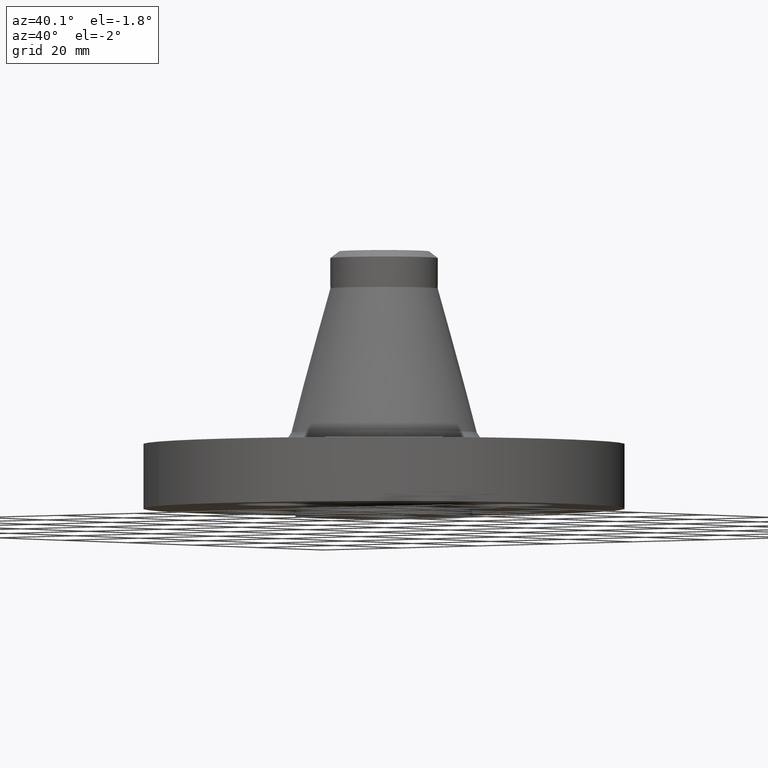
[diagram: clean part render]
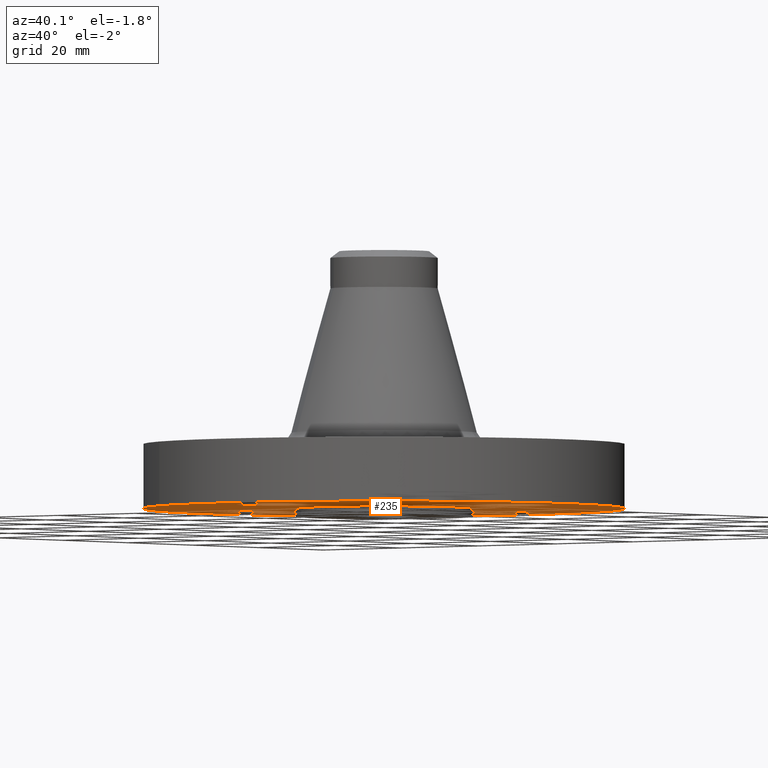
[diagram: same view with one face highlighted and labeled with its STEP entity id]
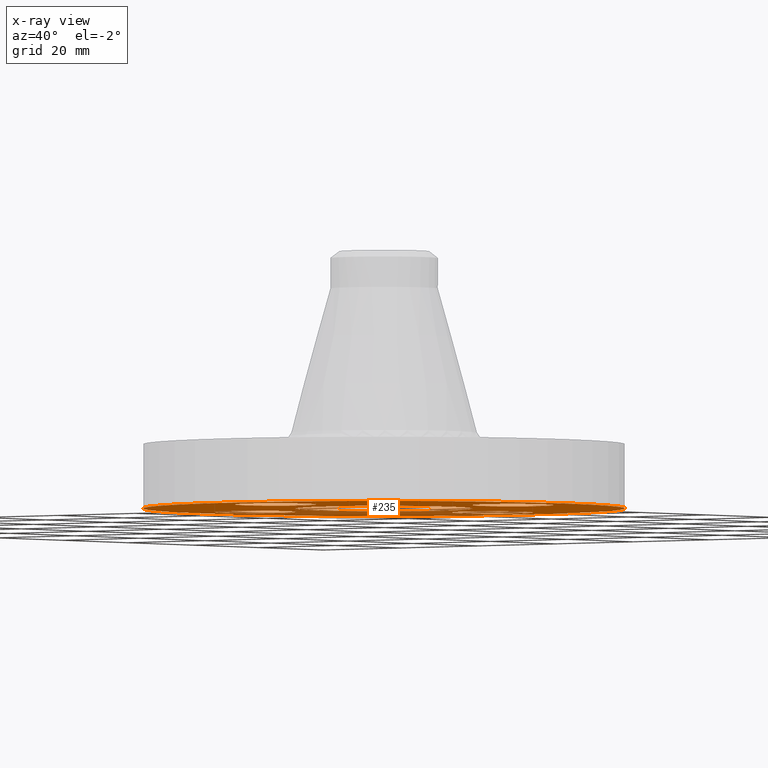
[diagram: x-ray of the same camera — body ghosted, the highlighted face saturated]
A machine part, auxiliary view. The second image highlights one B-rep face of the part: STEP entity #235.
The next image is the same camera in x-ray: the body ghosted, the highlighted face saturated — about 21% of this face is hidden behind the body in this view.
In plain terms, the highlighted planar face has unit normal (0, 0, -1).
Its self-contained STEP definition (entity closure, byte-faithful):
#114=AXIS2_PLACEMENT_3D('Circle Axis2P3D',#112,#113,$) ;
#139=AXIS2_PLACEMENT_3D('Plane Axis2P3D',#136,#137,#138) ;
#143=AXIS2_PLACEMENT_3D('Circle Axis2P3D',#141,#142,$) ;
#152=AXIS2_PLACEMENT_3D('Circle Axis2P3D',#150,#151,$) ;
#165=AXIS2_PLACEMENT_3D('Circle Axis2P3D',#163,#164,$) ;
#174=AXIS2_PLACEMENT_3D('Circle Axis2P3D',#172,#173,$) ;
#183=AXIS2_PLACEMENT_3D('Circle Axis2P3D',#181,#182,$) ;
#192=AXIS2_PLACEMENT_3D('Circle Axis2P3D',#190,#191,$) ;
#201=AXIS2_PLACEMENT_3D('Circle Axis2P3D',#199,#200,$) ;
#210=AXIS2_PLACEMENT_3D('Circle Axis2P3D',#208,#209,$) ;
#219=AXIS2_PLACEMENT_3D('Circle Axis2P3D',#217,#218,$) ;
#228=AXIS2_PLACEMENT_3D('Circle Axis2P3D',#226,#227,$) ;
#44=CARTESIAN_POINT('Vertex',(1.03356149304,0.151019044657,0.)) ;
#50=CARTESIAN_POINT('Control Point',(1.03356149301,0.151019044661,0.)) ;
#51=CARTESIAN_POINT('Control Point',(1.05728350908,0.194441903798,8.34104439061E-013)) ;
#52=CARTESIAN_POINT('Control Point',(1.08953158359,0.233206955974,1.66820887812E-012)) ;
#53=CARTESIAN_POINT('Control Point',(1.12909312141,0.265074533342,2.50231331718E-012)) ;
#54=CARTESIAN_POINT('Control Point',(1.21857978084,0.311580534084,4.17052219531E-012)) ;
#55=CARTESIAN_POINT('Control Point',(1.31900750771,0.320796932274,5.83873107343E-012)) ;
#56=CARTESIAN_POINT('Control Point',(1.36951551943,0.315356480668,6.67283551249E-012)) ;
#57=CARTESIAN_POINT('Control Point',(1.46567685163,0.28496456545,8.34104439061E-012)) ;
#58=CARTESIAN_POINT('Control Point',(1.54320695598,0.220468416416,1.00092532687E-011)) ;
#59=CARTESIAN_POINT('Control Point',(1.57507453335,0.180906878601,1.08433577078E-011)) ;
#60=CARTESIAN_POINT('Control Point',(1.62158053409,0.0914202191715,1.25115665859E-011)) ;
#61=CARTESIAN_POINT('Control Point',(1.63079693228,-0.00900750770346,1.4179775464E-011)) ;
#62=CARTESIAN_POINT('Control Point',(1.62535648068,-0.059515519424,1.50138799031E-011)) ;
#63=CARTESIAN_POINT('Control Point',(1.61016052307,-0.107596185523,1.58479843422E-011)) ;
#64=CARTESIAN_POINT('Control Point',(1.58643850701,-0.151019044661,1.66820887812E-011)) ;
#65=CARTESIAN_POINT('Vertex',(1.58643850701,-0.151019044661,1.66820887812E-011)) ;
#112=CARTESIAN_POINT('Axis2P3D Location',(1.31000000001,0.,1.66820887812E-011)) ;
#136=CARTESIAN_POINT('Axis2P3D Location',(0.,0.690000000003,0.)) ;
#141=CARTESIAN_POINT('Axis2P3D Location',(-3.08540594648E-011,-1.26443038017E-012,0.)) ;
#145=CARTESIAN_POINT('Vertex',(-0.898922884866,-1.64546730358,0.)) ;
#147=CARTESIAN_POINT('Vertex',(0.898922884888,1.64546730355,3.33327066736E-011)) ;
#150=CARTESIAN_POINT('Axis2P3D Location',(8.39223703654E-016,-1.81193992444E-011,0.)) ;
#163=CARTESIAN_POINT('Axis2P3D Location',(4.3665228913E-011,-5.30795005499E-012,0.)) ;
#167=CARTESIAN_POINT('Vertex',(0.330803621648,0.605531967718,0.)) ;
#169=CARTESIAN_POINT('Vertex',(-0.330803621639,-0.605531967707,3.33327066736E-011)) ;
#172=CARTESIAN_POINT('Axis2P3D Location',(-1.28120086718E-011,2.55455499274E-011,0.)) ;
#181=CARTESIAN_POINT('Axis2P3D Location',(-1.28118338336E-011,-1.30999999998,0.)) ;
#185=CARTESIAN_POINT('Vertex',(0.151019044675,-1.03356149299,0.)) ;
#187=CARTESIAN_POINT('Vertex',(-0.151019044675,-1.58643850699,0.)) ;
#190=CARTESIAN_POINT('Axis2P3D Location',(4.36654037512E-011,-1.31000000001,0.)) ;
#199=CARTESIAN_POINT('Axis2P3D Location',(-1.31000000001,-1.81196789856E-011,0.)) ;
#203=CARTESIAN_POINT('Vertex',(-1.03356149304,-0.151019044693,0.)) ;
#205=CARTESIAN_POINT('Vertex',(-1.58643850697,0.151019044657,0.)) ;
#208=CARTESIAN_POINT('Axis2P3D Location',(-1.30999999998,3.83574187286E-011,0.)) ;
#217=CARTESIAN_POINT('Axis2P3D Location',(4.36654037512E-011,1.31,0.)) ;
#221=CARTESIAN_POINT('Vertex',(-0.151019044675,1.03356149302,0.)) ;
#223=CARTESIAN_POINT('Vertex',(0.151019044675,1.58643850703,0.)) ;
#226=CARTESIAN_POINT('Axis2P3D Location',(-1.28118338336E-011,1.31000000003,0.)) ;
#113=DIRECTION('Axis2P3D Direction',(0.,-0.,-0.0393700787402)) ;
#137=DIRECTION('Axis2P3D Direction',(0.,0.,-0.0393700787402)) ;
#138=DIRECTION('Axis2P3D XDirection',(0.0393700787402,0.,0.)) ;
#142=DIRECTION('Axis2P3D Direction',(0.,0.,-0.0393700787402)) ;
#151=DIRECTION('Axis2P3D Direction',(0.,0.,-0.0393700787402)) ;
#164=DIRECTION('Axis2P3D Direction',(0.,0.,-0.0393700787402)) ;
#173=DIRECTION('Axis2P3D Direction',(0.,0.,-0.0393700787402)) ;
#182=DIRECTION('Axis2P3D Direction',(0.,0.,-0.0393700787402)) ;
#191=DIRECTION('Axis2P3D Direction',(0.,0.,-0.0393700787402)) ;
#200=DIRECTION('Axis2P3D Direction',(0.,0.,-0.0393700787402)) ;
#209=DIRECTION('Axis2P3D Direction',(0.,0.,-0.0393700787402)) ;
#218=DIRECTION('Axis2P3D Direction',(0.,0.,-0.0393700787402)) ;
#227=DIRECTION('Axis2P3D Direction',(0.,0.,-0.0393700787402)) ;
#156=ORIENTED_EDGE('',*,*,#149,.T.) ;
#157=ORIENTED_EDGE('',*,*,#154,.T.) ;
#160=ORIENTED_EDGE('',*,*,#116,.F.) ;
#161=ORIENTED_EDGE('',*,*,#67,.F.) ;
#178=ORIENTED_EDGE('',*,*,#171,.F.) ;
#179=ORIENTED_EDGE('',*,*,#176,.F.) ;
#196=ORIENTED_EDGE('',*,*,#189,.F.) ;
#197=ORIENTED_EDGE('',*,*,#194,.F.) ;
#214=ORIENTED_EDGE('',*,*,#207,.F.) ;
#215=ORIENTED_EDGE('',*,*,#212,.F.) ;
#232=ORIENTED_EDGE('',*,*,#225,.F.) ;
#233=ORIENTED_EDGE('',*,*,#230,.F.) ;
#162=FACE_BOUND('',#159,.T.) ;
#180=FACE_BOUND('',#177,.T.) ;
#198=FACE_BOUND('',#195,.T.) ;
#216=FACE_BOUND('',#213,.T.) ;
#234=FACE_BOUND('',#231,.T.) ;
#235=ADVANCED_FACE('PartBody',(#158,#162,#180,#198,#216,#234),#140,.T.) ;
#49=B_SPLINE_CURVE_WITH_KNOTS('',5,(#50,#51,#52,#53,#54,#55,#56,#57,#58,#59,#60,#61,#62,#63,#64),.UNSPECIFIED.,.F.,.U.,(6,3,3,3,6),(-12.5679414107,-6.28397070536,8.881784197E-016,6.28397070536,12.5679414107),.UNSPECIFIED.) ;
#115=CIRCLE('generated circle',#114,0.315000000001) ;
#144=CIRCLE('generated circle',#143,1.87500000001) ;
#153=CIRCLE('generated circle',#152,1.87500000001) ;
#166=CIRCLE('generated circle',#165,0.690000000001) ;
#175=CIRCLE('generated circle',#174,0.690000000001) ;
#184=CIRCLE('generated circle',#183,0.315000000013) ;
#193=CIRCLE('generated circle',#192,0.315000000013) ;
#202=CIRCLE('generated circle',#201,0.314999999981) ;
#211=CIRCLE('generated circle',#210,0.314999999981) ;
#220=CIRCLE('generated circle',#219,0.315000000013) ;
#229=CIRCLE('generated circle',#228,0.315000000013) ;
#67=EDGE_CURVE('',#45,#66,#49,.T.) ;
#116=EDGE_CURVE('',#66,#45,#115,.T.) ;
#149=EDGE_CURVE('',#146,#148,#144,.T.) ;
#154=EDGE_CURVE('',#148,#146,#153,.T.) ;
#171=EDGE_CURVE('',#168,#170,#166,.T.) ;
#176=EDGE_CURVE('',#170,#168,#175,.T.) ;
#189=EDGE_CURVE('',#186,#188,#184,.T.) ;
#194=EDGE_CURVE('',#188,#186,#193,.T.) ;
#207=EDGE_CURVE('',#204,#206,#202,.T.) ;
#212=EDGE_CURVE('',#206,#204,#211,.T.) ;
#225=EDGE_CURVE('',#222,#224,#220,.T.) ;
#230=EDGE_CURVE('',#224,#222,#229,.T.) ;
#155=EDGE_LOOP('',(#156,#157)) ;
#159=EDGE_LOOP('',(#160,#161)) ;
#177=EDGE_LOOP('',(#178,#179)) ;
#195=EDGE_LOOP('',(#196,#197)) ;
#213=EDGE_LOOP('',(#214,#215)) ;
#231=EDGE_LOOP('',(#232,#233)) ;
#158=FACE_OUTER_BOUND('',#155,.T.) ;
#140=PLANE('',#139) ;
#45=VERTEX_POINT('',#44) ;
#66=VERTEX_POINT('',#65) ;
#146=VERTEX_POINT('',#145) ;
#148=VERTEX_POINT('',#147) ;
#168=VERTEX_POINT('',#167) ;
#170=VERTEX_POINT('',#169) ;
#186=VERTEX_POINT('',#185) ;
#188=VERTEX_POINT('',#187) ;
#204=VERTEX_POINT('',#203) ;
#206=VERTEX_POINT('',#205) ;
#222=VERTEX_POINT('',#221) ;
#224=VERTEX_POINT('',#223) ;